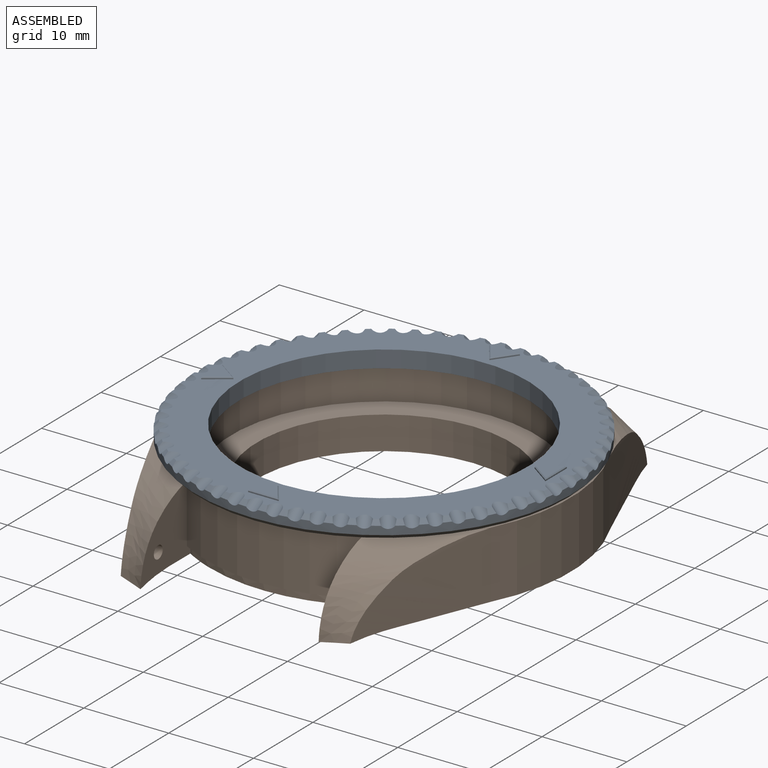
[diagram: assembled view]
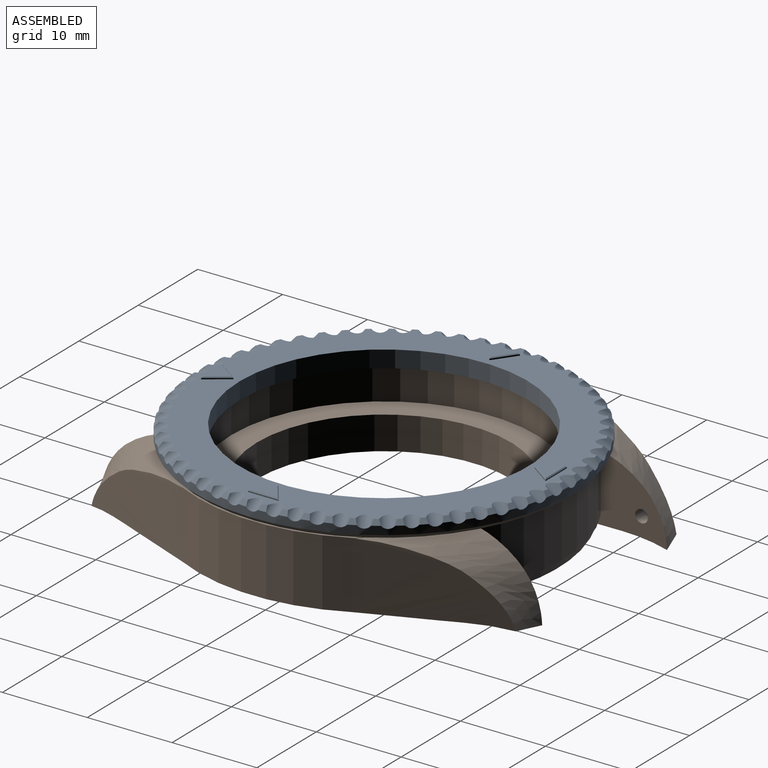
[diagram: assembled view, second angle]
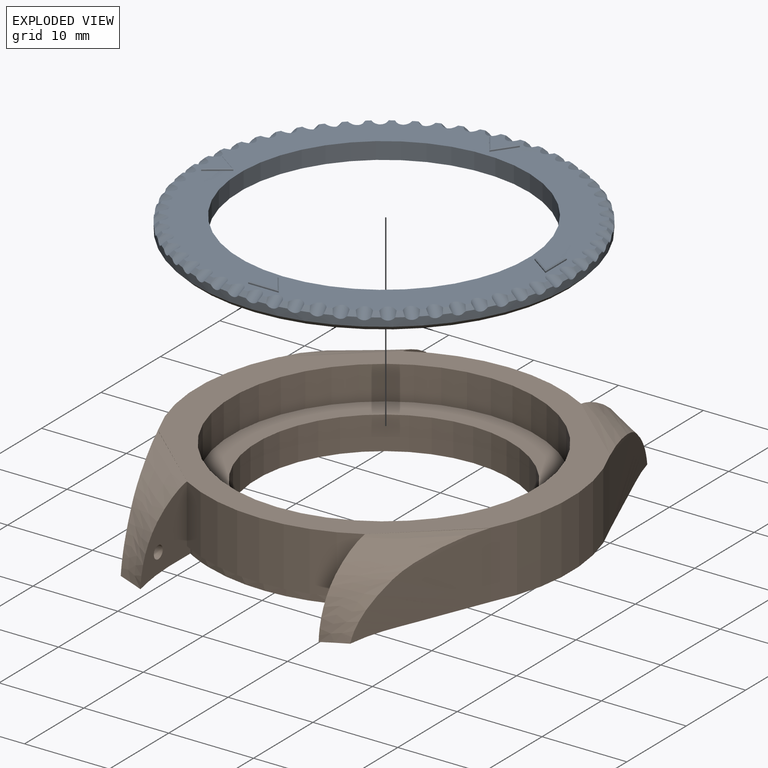
[diagram: exploded view]
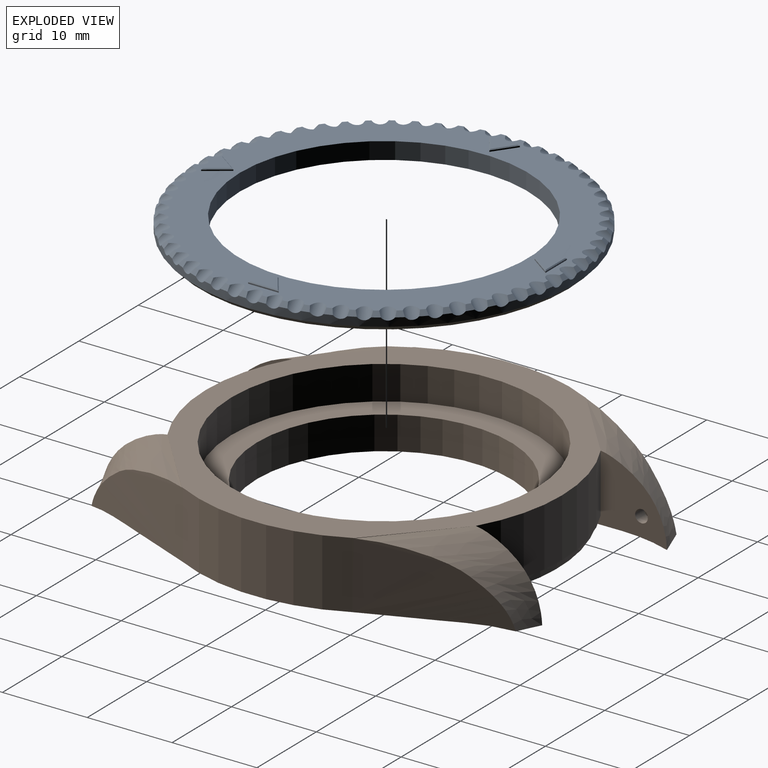
[diagram: exploded view, second angle]
ASSEMBLY  parts=2 mates=2
PART A: 156 faces, bbox 44.7x44.8x2.4 mm
  f0: plane 43.49x43.49mm, normal (0,0,1), area 490.8mm2, adj f1,f2,f4,f5,f6,f7,f8,f9
  f1: plane 2.89x0.92mm, normal (0,0,1), area 1.7mm2, adj f0,f82,f128
  f2: plane 1.57x1.13mm, normal (0,0,1), area 0.4mm2, adj f0,f129
  f3: cylinder r=22.25mm len=44.5mm, axis (0,0,-1), area 139.8mm2, adj f4,f5,f6,f7,f8,f9,f10,f11
  f4: cone r=21.75mm half-angle=45deg, axis (0,0,-1), area 0.5mm2, adj f0,f3,f125,f126
  f5: cone r=21.75mm half-angle=45deg, axis (0,0,-1), area 0.5mm2, adj f0,f3,f67,f126
  f6: cone r=21.75mm half-angle=45deg, axis (0,0,-1), area 0.5mm2, adj f0,f3,f124,f125
  f7: cone r=21.75mm half-angle=45deg, axis (0,0,-1), area 0.5mm2, adj f0,f3,f123,f124
  f8: cone r=21.75mm half-angle=45deg, axis (0,0,-1), area 0.5mm2, adj f0,f3,f122,f123
  f9: cone r=21.75mm half-angle=45deg, axis (0,0,-1), area 0.5mm2, adj f0,f3,f121,f122
  f10: cone r=21.75mm half-angle=45deg, axis (0,0,-1), area 0.5mm2, adj f0,f3,f120,f121
  f11: cone r=21.75mm half-angle=45deg, axis (0,0,-1), area 0.5mm2, adj f0,f3,f119,f120
  f12: cone r=21.75mm half-angle=45deg, axis (0,0,-1), area 0.5mm2, adj f0,f3,f118,f119
  f13: cone r=21.75mm half-angle=45deg, axis (0,0,-1), area 0.5mm2, adj f0,f3,f117,f118
  f14: cone r=21.75mm half-angle=45deg, axis (0,0,-1), area 0.5mm2, adj f0,f3,f116,f117
  f15: cone r=21.75mm half-angle=45deg, axis (0,0,-1), area 0.5mm2, adj f0,f3,f115,f116
  f16: cone r=21.75mm half-angle=45deg, axis (0,0,-1), area 0.5mm2, adj f0,f3,f114,f115
  f17: cone r=21.75mm half-angle=45deg, axis (0,0,-1), area 0.5mm2, adj f0,f3,f113,f114
  f18: cone r=21.75mm half-angle=45deg, axis (0,0,-1), area 0.5mm2, adj f0,f3,f112,f113
  f19: cone r=21.75mm half-angle=45deg, axis (0,0,-1), area 0.5mm2, adj f0,f3,f111,f112
  f20: cone r=21.75mm half-angle=45deg, axis (0,0,-1), area 0.5mm2, adj f0,f3,f110,f111
  f21: cone r=21.75mm half-angle=45deg, axis (0,0,-1), area 0.5mm2, adj f0,f3,f109,f110
  f22: cone r=21.75mm half-angle=45deg, axis (0,0,-1), area 0.5mm2, adj f0,f3,f108,f109
  f23: cone r=21.75mm half-angle=45deg, axis (0,0,-1), area 0.5mm2, adj f0,f3,f107,f108
  f24: cone r=21.75mm half-angle=45deg, axis (0,0,-1), area 0.5mm2, adj f0,f3,f106,f107
  f25: cone r=21.75mm half-angle=45deg, axis (0,0,-1), area 0.5mm2, adj f0,f3,f105,f106
  f26: cone r=21.75mm half-angle=45deg, axis (0,0,-1), area 0.5mm2, adj f0,f3,f104,f105
  f27: cone r=21.75mm half-angle=45deg, axis (0,0,-1), area 0.5mm2, adj f0,f3,f103,f104
  f28: cone r=21.75mm half-angle=45deg, axis (0,0,-1), area 0.5mm2, adj f0,f3,f102,f103
  f29: cone r=21.75mm half-angle=45deg, axis (0,0,-1), area 0.5mm2, adj f0,f3,f101,f102
  f30: cone r=21.75mm half-angle=45deg, axis (0,0,-1), area 0.5mm2, adj f0,f3,f100,f101
  f31: cone r=21.75mm half-angle=45deg, axis (0,0,-1), area 0.5mm2, adj f0,f3,f99,f100
  f32: cone r=21.75mm half-angle=45deg, axis (0,0,-1), area 0.5mm2, adj f0,f3,f98,f99
  f33: cone r=21.75mm half-angle=45deg, axis (0,0,-1), area 0.5mm2, adj f0,f3,f97,f98
  f34: cone r=21.75mm half-angle=45deg, axis (0,0,-1), area 0.5mm2, adj f0,f3,f96,f97
  f35: cone r=21.75mm half-angle=45deg, axis (0,0,-1), area 0.5mm2, adj f0,f3,f95,f96
  f36: cone r=21.75mm half-angle=45deg, axis (0,0,-1), area 0.5mm2, adj f0,f3,f94,f95
  f37: cone r=21.75mm half-angle=45deg, axis (0,0,-1), area 0.5mm2, adj f0,f3,f93,f94
  f38: cone r=21.75mm half-angle=45deg, axis (0,0,-1), area 0.5mm2, adj f0,f3,f92,f93
  f39: cone r=21.75mm half-angle=45deg, axis (0,0,-1), area 0.5mm2, adj f0,f3,f91,f92
  f40: cone r=21.75mm half-angle=45deg, axis (0,0,-1), area 0.5mm2, adj f0,f3,f90,f91
  f41: cone r=21.75mm half-angle=45deg, axis (0,0,-1), area 0.5mm2, adj f0,f3,f89,f90
  f42: cone r=21.75mm half-angle=45deg, axis (0,0,-1), area 0.5mm2, adj f0,f3,f88,f89
  f43: cone r=21.75mm half-angle=45deg, axis (0,0,-1), area 0.5mm2, adj f0,f3,f87,f88
  f44: cone r=21.75mm half-angle=45deg, axis (0,0,-1), area 0.5mm2, adj f0,f3,f86,f87
  f45: cone r=21.75mm half-angle=45deg, axis (0,0,-1), area 0.5mm2, adj f0,f3,f85,f86
  f46: cone r=21.75mm half-angle=45deg, axis (0,0,-1), area 0.5mm2, adj f0,f3,f84,f85
  f47: cone r=21.75mm half-angle=45deg, axis (0,0,-1), area 0.5mm2, adj f0,f3,f83,f84
  f48: cone r=21.75mm half-angle=45deg, axis (0,0,-1), area 0.5mm2, adj f0,f3,f82,f83
  f49: cone r=21.75mm half-angle=45deg, axis (0,0,-1), area 0.5mm2, adj f0,f3,f81,f82
  f50: cone r=21.75mm half-angle=45deg, axis (0,0,-1), area 0.5mm2, adj f0,f3,f80,f81
  f51: cone r=21.75mm half-angle=45deg, axis (0,0,-1), area 0.5mm2, adj f0,f3,f79,f80
  f52: cone r=21.75mm half-angle=45deg, axis (0,0,-1), area 0.5mm2, adj f0,f3,f78,f79
  f53: cone r=21.75mm half-angle=45deg, axis (0,0,-1), area 0.5mm2, adj f0,f3,f77,f78
  f54: cone r=21.75mm half-angle=45deg, axis (0,0,-1), area 0.5mm2, adj f0,f3,f76,f77
  f55: cone r=21.75mm half-angle=45deg, axis (0,0,-1), area 0.5mm2, adj f0,f3,f75,f76
  f56: cone r=21.75mm half-angle=45deg, axis (0,0,-1), area 0.5mm2, adj f0,f3,f74,f75
  f57: cone r=21.75mm half-angle=45deg, axis (0,0,-1), area 0.5mm2, adj f0,f3,f73,f74
  f58: cone r=21.75mm half-angle=45deg, axis (0,0,-1), area 0.5mm2, adj f0,f3,f72,f73
  f59: cone r=21.75mm half-angle=45deg, axis (0,0,-1), area 0.5mm2, adj f0,f3,f71,f72
  f60: cone r=21.75mm half-angle=45deg, axis (0,0,-1), area 0.5mm2, adj f0,f3,f70,f71
  f61: cone r=21.75mm half-angle=45deg, axis (0,0,-1), area 0.5mm2, adj f0,f3,f69,f70
  f62: cone r=21.75mm half-angle=45deg, axis (0,0,-1), area 0.5mm2, adj f0,f3,f68,f69
  f63: cone r=21.75mm half-angle=45deg, axis (0,0,-1), area 0.5mm2, adj f0,f3,f67,f68
  f64: plane 43.5x43.5mm, normal (0,0,-1), area 578.2mm2, adj f65,f66
  f65: cylinder r=17mm len=34mm, axis (0,0,-1), area 213.6mm2, adj f0,f64
  f66: cone r=22.25mm half-angle=45deg, axis (0,0,1), area 97.7mm2, adj f3,f64
  f67: cylinder r=1mm len=1.68mm, axis (-0.87,0,-0.5), area 2.3mm2, adj f0,f3,f5,f63
  f68: cylinder r=1mm len=1.81mm, axis (-0.86,0.09,-0.5), area 2.3mm2, adj f0,f3,f62,f63
  f69: cylinder r=1mm len=1.91mm, axis (-0.85,0.18,-0.5), area 2.3mm2, adj f0,f3,f61,f62
  f70: cylinder r=1mm len=2mm, axis (-0.82,0.27,-0.5), area 2.3mm2, adj f0,f3,f60,f61
  f71: cylinder r=1mm len=2.06mm, axis (-0.79,0.35,-0.5), area 2.3mm2, adj f0,f3,f59,f60
  f72: cylinder r=1mm len=2.1mm, axis (-0.75,0.43,-0.5), area 2.3mm2, adj f0,f3,f58,f59
  f73: cylinder r=1mm len=2.12mm, axis (-0.7,0.51,-0.5), area 2.3mm2, adj f0,f3,f57,f58
  f74: cylinder r=1mm len=2.11mm, axis (-0.64,0.58,-0.5), area 2.3mm2, adj f0,f3,f56,f57
  f75: cylinder r=1mm len=2.11mm, axis (-0.58,0.64,-0.5), area 2.3mm2, adj f0,f3,f55,f56
  f76: cylinder r=1mm len=2.12mm, axis (-0.51,0.7,-0.5), area 2.3mm2, adj f0,f3,f54,f55
  f77: cylinder r=1mm len=2.1mm, axis (-0.43,0.75,-0.5), area 2.3mm2, adj f0,f3,f53,f54
  f78: cylinder r=1mm len=2.06mm, axis (-0.35,0.79,-0.5), area 2.3mm2, adj f0,f3,f52,f53
  f79: cylinder r=1mm len=2mm, axis (-0.27,0.82,-0.5), area 2.3mm2, adj f0,f3,f51,f52
  f80: cylinder r=1mm len=1.91mm, axis (-0.18,0.85,-0.5), area 2.3mm2, adj f0,f3,f50,f51
  f81: cylinder r=1mm len=1.81mm, axis (-0.09,0.86,-0.5), area 2.3mm2, adj f0,f3,f49,f50
  f82: cylinder r=1mm len=1.68mm, axis (0,0.87,-0.5), area 2.4mm2, adj f0,f1,f3,f48,f49
  f83: cylinder r=1mm len=1.81mm, axis (0.09,0.86,-0.5), area 2.3mm2, adj f0,f3,f47,f48
  f84: cylinder r=1mm len=1.91mm, axis (0.18,0.85,-0.5), area 2.3mm2, adj f0,f3,f46,f47
  f85: cylinder r=1mm len=2mm, axis (0.27,0.82,-0.5), area 2.3mm2, adj f0,f3,f45,f46
  f86: cylinder r=1mm len=2.06mm, axis (0.35,0.79,-0.5), area 2.3mm2, adj f0,f3,f44,f45
  f87: cylinder r=1mm len=2.1mm, axis (0.43,0.75,-0.5), area 2.3mm2, adj f0,f3,f43,f44
  f88: cylinder r=1mm len=2.12mm, axis (0.51,0.7,-0.5), area 2.3mm2, adj f0,f3,f42,f43
  f89: cylinder r=1mm len=2.11mm, axis (0.58,0.64,-0.5), area 2.3mm2, adj f0,f3,f41,f42
  f90: cylinder r=1mm len=2.11mm, axis (0.64,0.58,-0.5), area 2.3mm2, adj f0,f3,f40,f41
  f91: cylinder r=1mm len=2.12mm, axis (0.7,0.51,-0.5), area 2.3mm2, adj f0,f3,f39,f40
  f92: cylinder r=1mm len=2.1mm, axis (0.75,0.43,-0.5), area 2.3mm2, adj f0,f3,f38,f39
  f93: cylinder r=1mm len=2.06mm, axis (0.79,0.35,-0.5), area 2.3mm2, adj f0,f3,f37,f38
  f94: cylinder r=1mm len=2mm, axis (0.82,0.27,-0.5), area 2.3mm2, adj f0,f3,f36,f37
  f95: cylinder r=1mm len=1.91mm, axis (0.85,0.18,-0.5), area 2.3mm2, adj f0,f3,f35,f36
  f96: cylinder r=1mm len=1.81mm, axis (0.86,0.09,-0.5), area 2.3mm2, adj f0,f3,f34,f35
  f97: cylinder r=1mm len=1.68mm, axis (0.87,0,-0.5), area 2.3mm2, adj f0,f3,f33,f34
  f98: cylinder r=1mm len=1.81mm, axis (0.86,-0.09,-0.5), area 2.3mm2, adj f0,f3,f32,f33
  f99: cylinder r=1mm len=1.91mm, axis (0.85,-0.18,-0.5), area 2.3mm2, adj f0,f3,f31,f32
  f100: cylinder r=1mm len=2mm, axis (0.82,-0.27,-0.5), area 2.3mm2, adj f0,f3,f30,f31
  f101: cylinder r=1mm len=2.06mm, axis (0.79,-0.35,-0.5), area 2.3mm2, adj f0,f3,f29,f30
  f102: cylinder r=1mm len=2.1mm, axis (0.75,-0.43,-0.5), area 2.3mm2, adj f0,f3,f28,f29
  f103: cylinder r=1mm len=2.12mm, axis (0.7,-0.51,-0.5), area 2.3mm2, adj f0,f3,f27,f28
  f104: cylinder r=1mm len=2.11mm, axis (0.64,-0.58,-0.5), area 2.3mm2, adj f0,f3,f26,f27
  f105: cylinder r=1mm len=2.11mm, axis (0.58,-0.64,-0.5), area 2.3mm2, adj f0,f3,f25,f26
  f106: cylinder r=1mm len=2.12mm, axis (0.51,-0.7,-0.5), area 2.3mm2, adj f0,f3,f24,f25
  f107: cylinder r=1mm len=2.1mm, axis (0.43,-0.75,-0.5), area 2.3mm2, adj f0,f3,f23,f24
  f108: cylinder r=1mm len=2.06mm, axis (0.35,-0.79,-0.5), area 2.3mm2, adj f0,f3,f22,f23
  f109: cylinder r=1mm len=2mm, axis (0.27,-0.82,-0.5), area 2.3mm2, adj f0,f3,f21,f22
  f110: cylinder r=1mm len=1.91mm, axis (0.18,-0.85,-0.5), area 2.3mm2, adj f0,f3,f20,f21
  f111: cylinder r=1mm len=1.81mm, axis (0.09,-0.86,-0.5), area 2.3mm2, adj f0,f3,f19,f20
  f112: cylinder r=1mm len=1.68mm, axis (0,-0.87,-0.5), area 2.3mm2, adj f0,f3,f18,f19
  f113: cylinder r=1mm len=1.81mm, axis (-0.09,-0.86,-0.5), area 2.3mm2, adj f0,f3,f17,f18
  f114: cylinder r=1mm len=1.91mm, axis (-0.18,-0.85,-0.5), area 2.3mm2, adj f0,f3,f16,f17
  f115: cylinder r=1mm len=2mm, axis (-0.27,-0.82,-0.5), area 2.3mm2, adj f0,f3,f15,f16
  f116: cylinder r=1mm len=2.06mm, axis (-0.35,-0.79,-0.5), area 2.3mm2, adj f0,f3,f14,f15
  f117: cylinder r=1mm len=2.1mm, axis (-0.43,-0.75,-0.5), area 2.3mm2, adj f0,f3,f13,f14
  f118: cylinder r=1mm len=2.12mm, axis (-0.51,-0.7,-0.5), area 2.3mm2, adj f0,f3,f12,f13
  f119: cylinder r=1mm len=2.11mm, axis (-0.58,-0.64,-0.5), area 2.3mm2, adj f0,f3,f11,f12
  f120: cylinder r=1mm len=2.11mm, axis (-0.64,-0.58,-0.5), area 2.3mm2, adj f0,f3,f10,f11
  f121: cylinder r=1mm len=2.12mm, axis (-0.7,-0.51,-0.5), area 2.3mm2, adj f0,f3,f9,f10
  f122: cylinder r=1mm len=2.1mm, axis (-0.75,-0.43,-0.5), area 2.3mm2, adj f0,f3,f8,f9
  f123: cylinder r=1mm len=2.06mm, axis (-0.79,-0.35,-0.5), area 2.3mm2, adj f0,f3,f7,f8
  f124: cylinder r=1mm len=2mm, axis (-0.82,-0.27,-0.5), area 2.3mm2, adj f0,f3,f6,f7
  f125: cylinder r=1mm len=1.91mm, axis (-0.85,-0.18,-0.5), area 2.3mm2, adj f0,f3,f4,f6
  f126: cylinder r=1mm len=1.81mm, axis (-0.86,-0.09,-0.5), area 2.3mm2, adj f0,f3,f4,f5
  f127: plane 1.57x1.13mm, normal (0,0,1), area 0.4mm2, adj f0,f130
  f128: plane 3.61x0.15mm, normal (0,1,0), area 0.5mm2, adj f0,f1,f129,f130,f132
  f129: plane 2.55x1.81mm, normal (-0.82,-0.58,0), area 0.5mm2, adj f0,f2,f128,f130,f133
  f130: plane 2.55x1.81mm, normal (0.82,-0.58,0), area 0.5mm2, adj f0,f127,f128,f129,f134
  f131: plane 3.23x2.27mm, normal (0,0,1), area 3.7mm2, adj f132,f133,f134
  f132: plane 3.61x0.1mm, normal (0,0.71,0.71), area 0.5mm2, adj f128,f131,f133,f134
  f133: plane 2.55x1.81mm, normal (-0.58,-0.41,0.71), area 0.4mm2, adj f129,f131,f132,f134
  f134: plane 2.55x1.81mm, normal (0.58,-0.41,0.71), area 0.4mm2, adj f130,f131,f132,f133
  f135: plane 3.61x0.15mm, normal (-1,0,0), area 0.5mm2, adj f0,f136,f137,f139
  f136: plane 2.55x1.81mm, normal (0.58,-0.82,0), area 0.5mm2, adj f0,f135,f137,f140
  f137: plane 2.55x1.81mm, normal (0.58,0.82,0), area 0.5mm2, adj f0,f135,f136,f141
  f138: plane 3.23x2.27mm, normal (0,0,1), area 3.7mm2, adj f139,f140,f141
  f139: plane 3.61x0.1mm, normal (-0.71,0,0.71), area 0.5mm2, adj f135,f138,f140,f141
  f140: plane 2.55x1.81mm, normal (0.41,-0.58,0.71), area 0.4mm2, adj f136,f138,f139,f141
  f141: plane 2.55x1.81mm, normal (0.41,0.58,0.71), area 0.4mm2, adj f137,f138,f139,f140
  f142: plane 3.61x0.15mm, normal (0,-1,0), area 0.5mm2, adj f0,f143,f144,f146
  f143: plane 2.55x1.81mm, normal (0.82,0.58,0), area 0.5mm2, adj f0,f142,f144,f147
  f144: plane 2.55x1.81mm, normal (-0.82,0.58,0), area 0.5mm2, adj f0,f142,f143,f148
  f145: plane 3.23x2.27mm, normal (0,0,1), area 3.7mm2, adj f146,f147,f148
  f146: plane 3.61x0.1mm, normal (0,-0.71,0.71), area 0.5mm2, adj f142,f145,f147,f148
  f147: plane 2.55x1.81mm, normal (0.58,0.41,0.71), area 0.4mm2, adj f143,f145,f146,f148
  f148: plane 2.55x1.81mm, normal (-0.58,0.41,0.71), area 0.4mm2, adj f144,f145,f146,f147
  f149: plane 3.61x0.15mm, normal (1,0,0), area 0.5mm2, adj f0,f150,f151,f153
  f150: plane 2.55x1.81mm, normal (-0.58,0.82,0), area 0.5mm2, adj f0,f149,f151,f154
  f151: plane 2.55x1.81mm, normal (-0.58,-0.82,0), area 0.5mm2, adj f0,f149,f150,f155
  f152: plane 3.23x2.27mm, normal (0,0,1), area 3.7mm2, adj f153,f154,f155
  f153: plane 3.61x0.1mm, normal (0.71,0,0.71), area 0.5mm2, adj f149,f152,f154,f155
  f154: plane 2.55x1.81mm, normal (-0.41,0.58,0.71), area 0.4mm2, adj f150,f152,f153,f155
  f155: plane 2.55x1.81mm, normal (-0.41,-0.58,0.71), area 0.4mm2, adj f151,f152,f153,f154
PART B: 43 faces, bbox 44x52x8.5 mm
  f0: cylinder r=15mm len=30mm, axis (0,0,-1), area 367.8mm2, adj f2,f41
  f1: cylinder r=21mm len=21mm, axis (0,0,-1), area 151.8mm2, adj f9,f10,f23,f39
  f2: plane 44x35.87mm, normal (0,0,-1), area 711.9mm2, adj f0,f3,f4,f5,f7,f8,f9,f10
  f3: extruded ~19.86x2.57mm, area 34.4mm2, adj f2,f40
  f4: extruded ~8.07x5.86mm, area 32.5mm2, adj f2,f9,f18,f19
  f5: extruded ~8.07x5.86mm, area 32.5mm2, adj f2,f10,f11,f20
  f6: cylinder r=21mm len=21mm, axis (0,0,-1), area 151.8mm2, adj f14,f15,f23,f37
  f7: extruded ~19.86x2.57mm, area 34.4mm2, adj f2,f38
  f8: extruded ~8.07x5.86mm, area 32.5mm2, adj f2,f13,f14,f21
  f9: plane 8.5x8.39mm, normal (-1,0,0), area 44.5mm2, adj f1,f2,f4,f19,f31,f39,f40
  f10: plane 8.5x8.39mm, normal (1,0,0), area 44.5mm2, adj f1,f2,f5,f20,f30,f39,f40
  f11: cylinder r=1441.83mm len=15.02mm, axis (0,0,-1), area 95.3mm2, adj f2,f5,f12,f20,f23,f25
  f12: cylinder r=22mm len=19.97mm, axis (0,0,-1), area 163.8mm2, adj f2,f11,f13,f23
  f13: cylinder r=1441.83mm len=15.02mm, axis (0,0,-1), area 95.3mm2, adj f2,f8,f12,f21,f23,f26
  f14: plane 8.5x8.39mm, normal (1,0,0), area 44.5mm2, adj f2,f6,f8,f21,f35,f37,f38
  f15: plane 8.5x8.39mm, normal (-1,0,0), area 44.5mm2, adj f2,f6,f22,f28,f34,f37,f38
  f16: cylinder r=1441.83mm len=15.02mm, axis (0,0,-1), area 95.3mm2, adj f2,f17,f22,f23,f27,f28
  f17: cylinder r=22mm len=19.97mm, axis (0,0,-1), area 163.8mm2, adj f2,f16,f18,f23
  f18: cylinder r=1441.83mm len=15.02mm, axis (0,0,-1), area 95.3mm2, adj f2,f4,f17,f19,f23,f24
  f19: bspline ~15.96x9.18mm, area 75.1mm2, adj f4,f9,f18,f24
  f20: bspline ~15.96x9.18mm, area 75.1mm2, adj f5,f10,f11,f25
  f21: bspline ~15.96x9.18mm, area 75.1mm2, adj f8,f13,f14,f26
  f22: bspline ~15.96x9.18mm, area 75.1mm2, adj f15,f16,f27,f28
  f23: plane 44x42mm, normal (0,0,1), area 405.5mm2, adj f1,f6,f11,f12,f13,f16,f17,f18
  f24: plane 9.03x8.01mm, normal (0.66,0.75,0), area 0.2mm2, adj f18,f19,f23
  f25: plane 9.03x8.01mm, normal (-0.66,0.75,0), area 0.2mm2, adj f11,f20,f23
  f26: plane 9.03x8.01mm, normal (-0.66,-0.75,0), area 0.2mm2, adj f13,f21,f23
  f27: plane 9.03x8.01mm, normal (0.66,-0.75,0), area 0.2mm2, adj f16,f22,f23
  f28: extruded ~8.07x5.86mm, area 32.5mm2, adj f2,f15,f16,f22
  f29: plane 1.5x1.5mm, normal (1,0,0), area 1.8mm2, adj f30
  f30: cylinder r=0.75mm len=1.5mm, axis (-1,0,0), area 7.1mm2, adj f10,f29
  f31: cylinder r=0.75mm len=1.5mm, axis (-1,0,0), area 7.1mm2, adj f9,f32
  f32: plane 1.5x1.5mm, normal (-1,0,0), area 1.8mm2, adj f31
  f33: plane 1.5x1.5mm, normal (-1,0,0), area 1.8mm2, adj f34
  f34: cylinder r=0.75mm len=1.5mm, axis (-1,0,0), area 7.1mm2, adj f15,f33
  f35: cylinder r=0.75mm len=1.5mm, axis (-1,0,0), area 7.1mm2, adj f14,f36
  f36: plane 1.5x1.5mm, normal (1,0,0), area 1.8mm2, adj f35
  f37: plane 21x3.39mm, normal (0,0,-1), area 11mm2, adj f6,f14,f15,f38
  f38: cylinder r=20.5mm len=21mm, axis (0,0,-1), area 22mm2, adj f2,f7,f14,f15,f37
  f39: plane 21x3.39mm, normal (0,0,-1), area 11mm2, adj f1,f9,f10,f40
  f40: cylinder r=20.5mm len=21mm, axis (0,0,-1), area 22mm2, adj f2,f3,f9,f10,f39
  f41: plane 36x36mm, normal (0,0,1), area 311mm2, adj f0,f42
  f42: cylinder r=18mm len=36mm, axis (0,0,1), area 452.4mm2, adj f23,f41
PLACE A t=(-5.04,3.45,15.73)mm
PLACE B rot(axis=(0,0,1),0deg) t=(-5.04,3.45,7.23)mm
MATE parallel A.f3 <-> B.f23  axis (0,0,-1) through (-5.04,3.45,15.73)mm
MATE cylindrical A.f3 <-> B.f0  axis (0,0,-1) through (-5.04,3.45,16.73)mm
